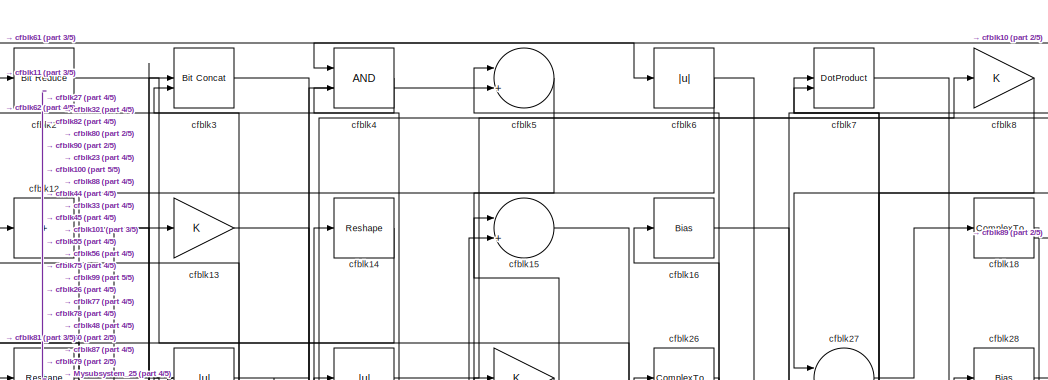
[diagram: root canvas - part 1/5, top center region]
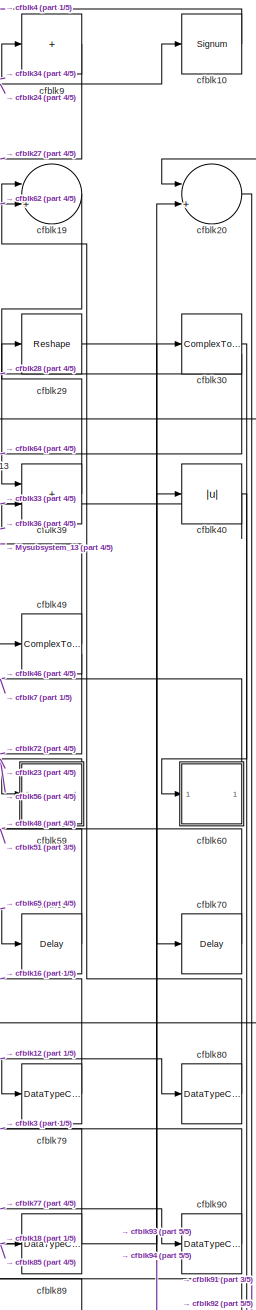
[diagram: root canvas - part 2/5, right side, full height]
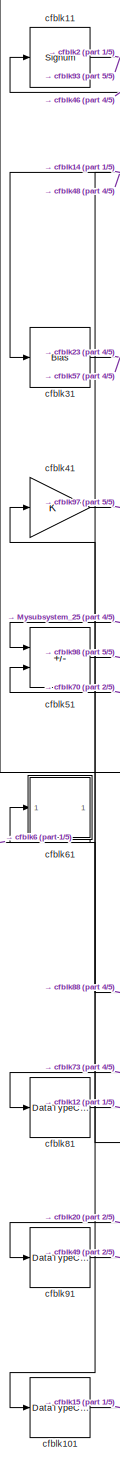
[diagram: root canvas - part 3/5, left side, full height]
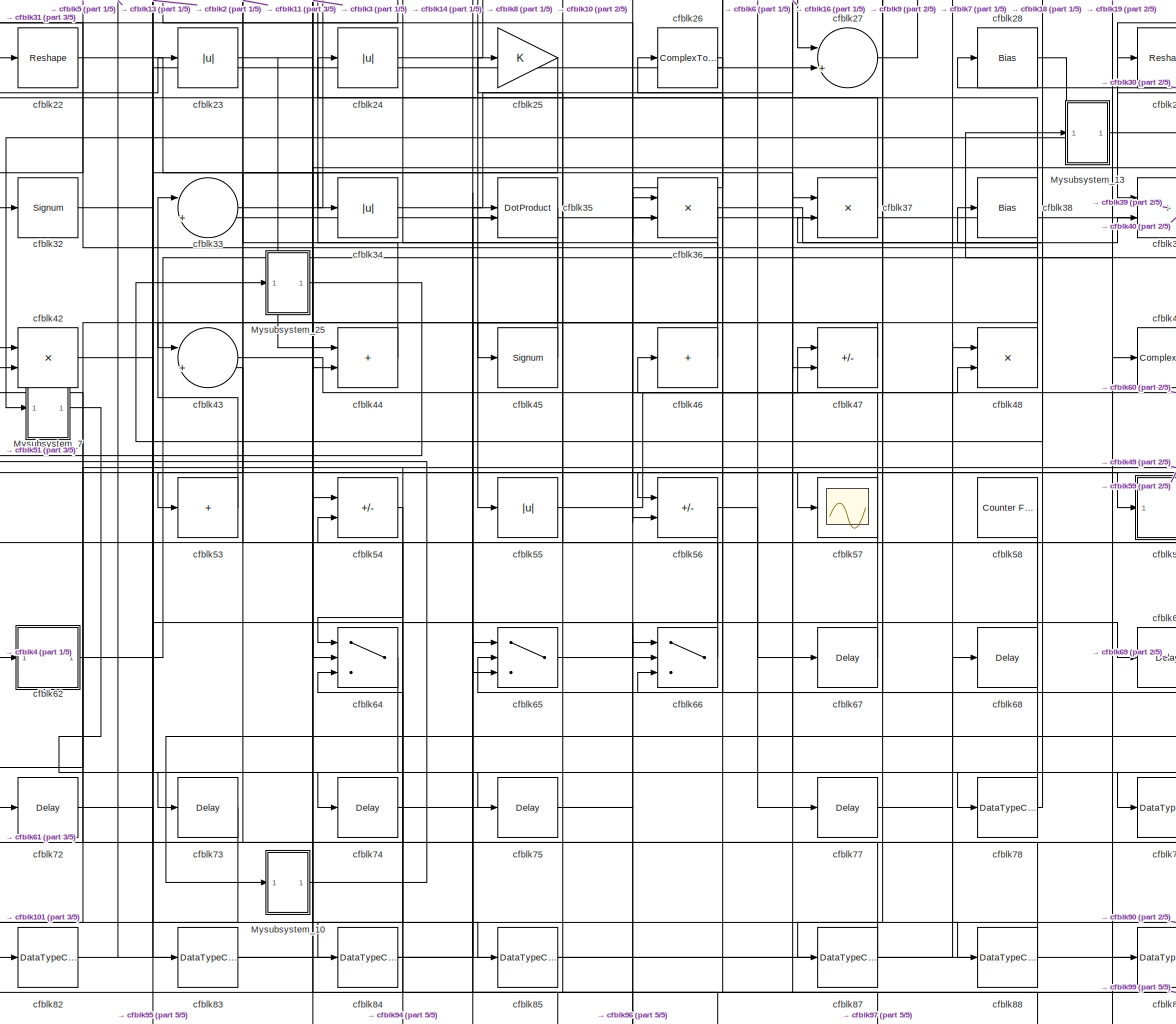
[diagram: root canvas - part 4/5, full width, middle band]
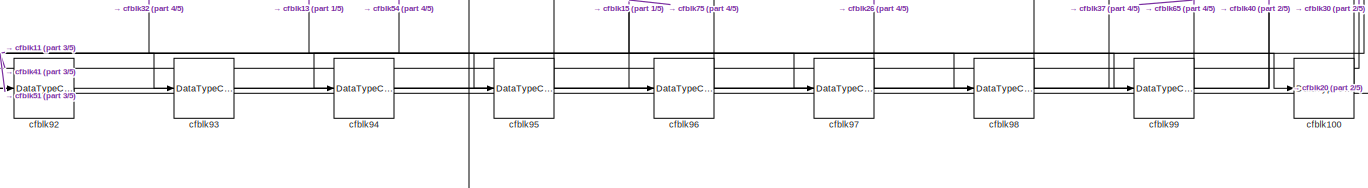
[diagram: root canvas - part 5/5, full width, bottom band]
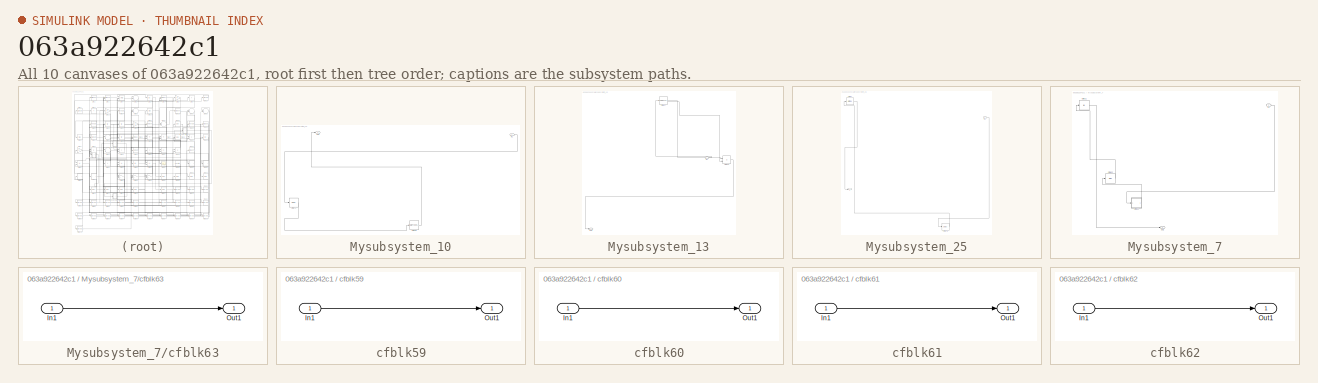
[diagram: thumbnail index - all 10 canvases of the model, root first then tree order]
MODEL slx_063a922642c1
KIND model
CONFIG AbsTol = auto
CONFIG EnableMultiTasking = off
CONFIG FixedStep = auto
CONFIG MaxStep = auto
CONFIG MinStep = auto
CONFIG RelTol = 1e-3
CONFIG SampleTimeConstraint = Unconstrained
CONFIG SolverName = VariableStepAuto
CONFIG StartTime = 0.0
CONFIG StopTime = 10.0
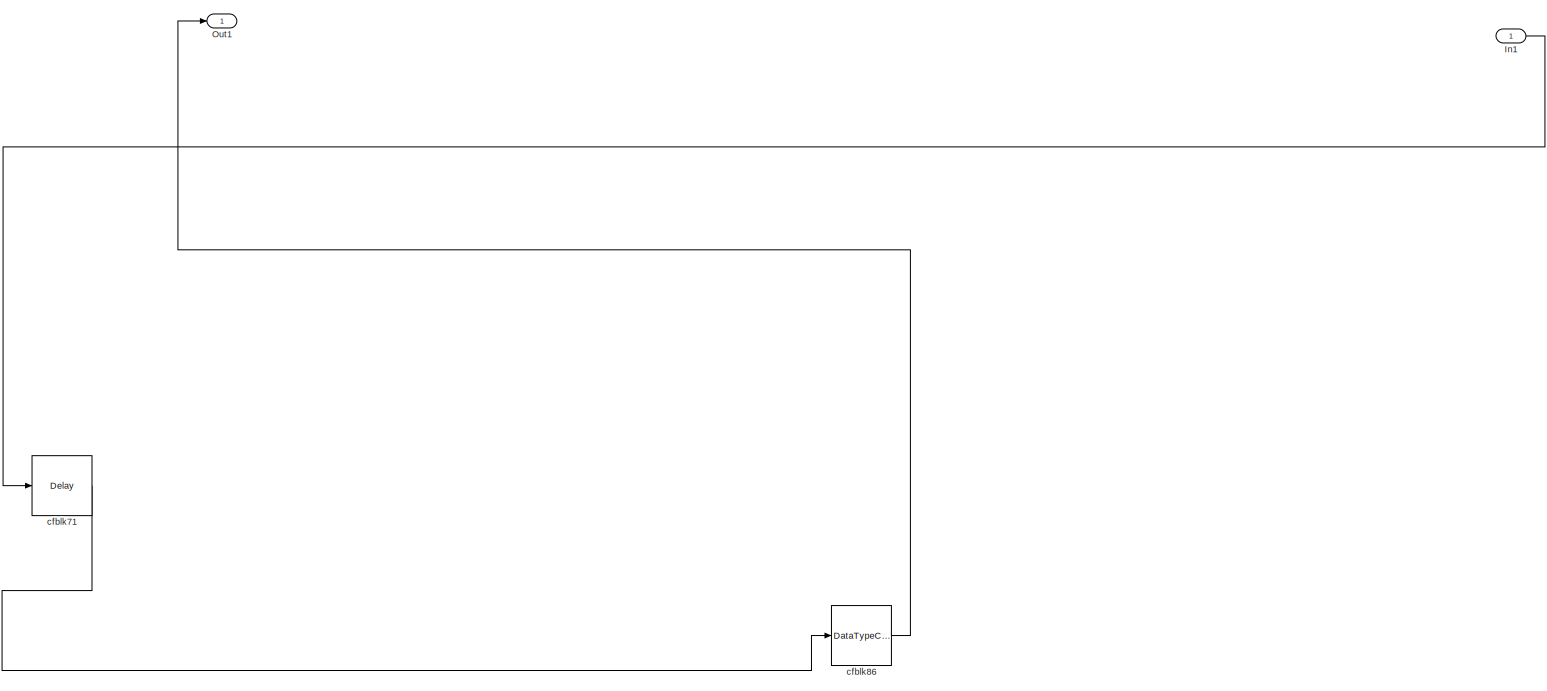
[diagram: Mysubsystem_10 - part 1/1, most of the canvas]
BLOCK [SubSystem] Mysubsystem_10
  RTWFcnName = Mysubsystem_10
  RTWFcnNameOpts = User specified
  RTWFileNameOpts = Use function name
  RTWSystemCode = Reusable function
  TreatAsAtomicUnit = on
BLOCK [Inport] Mysubsystem_10/In1
BLOCK [Outport] Mysubsystem_10/Out1
BLOCK [Delay] Mysubsystem_10/cfblk71
  InputPortMap = u0
  SampleTime = 1
BLOCK [DataTypeConversion] Mysubsystem_10/cfblk86
  OutDataTypeStr = uint8
  RndMeth = Floor
  SaturateOnIntegerOverflow = off
BLOCK [SubSystem] Mysubsystem_13
  RTWFcnName = Mysubsystem_13
  RTWFcnNameOpts = User specified
  RTWFileNameOpts = Use function name
  RTWSystemCode = Reusable function
  TreatAsAtomicUnit = on
BLOCK [Inport] Mysubsystem_13/In1
BLOCK [Outport] Mysubsystem_13/Out1
BLOCK [ComplexToRealImag] Mysubsystem_13/cfblk17
BLOCK [Product] Mysubsystem_13/cfblk50
  Inputs = */
  RndMeth = Zero
  SaturateOnIntegerOverflow = on
BLOCK [SubSystem] Mysubsystem_25
  RTWFcnName = Mysubsystem_25
  RTWFcnNameOpts = User specified
  RTWFileNameOpts = Use function name
  RTWSystemCode = Reusable function
  TreatAsAtomicUnit = on
BLOCK [Inport] Mysubsystem_25/In1
BLOCK [Reference] Mysubsystem_25/cfblk1  REF=hdlsllib/Logic and Bit
Operations/Bit Slice
  SourceBlock = hdlsllib/Logic and Bit\nOperations/Bit Slice
  SourceType = Bit Slice
BLOCK [Delay] Mysubsystem_25/cfblk76
  InputPortMap = u0
  SampleTime = 1
BLOCK [Outport] Mysubsystem_25/y
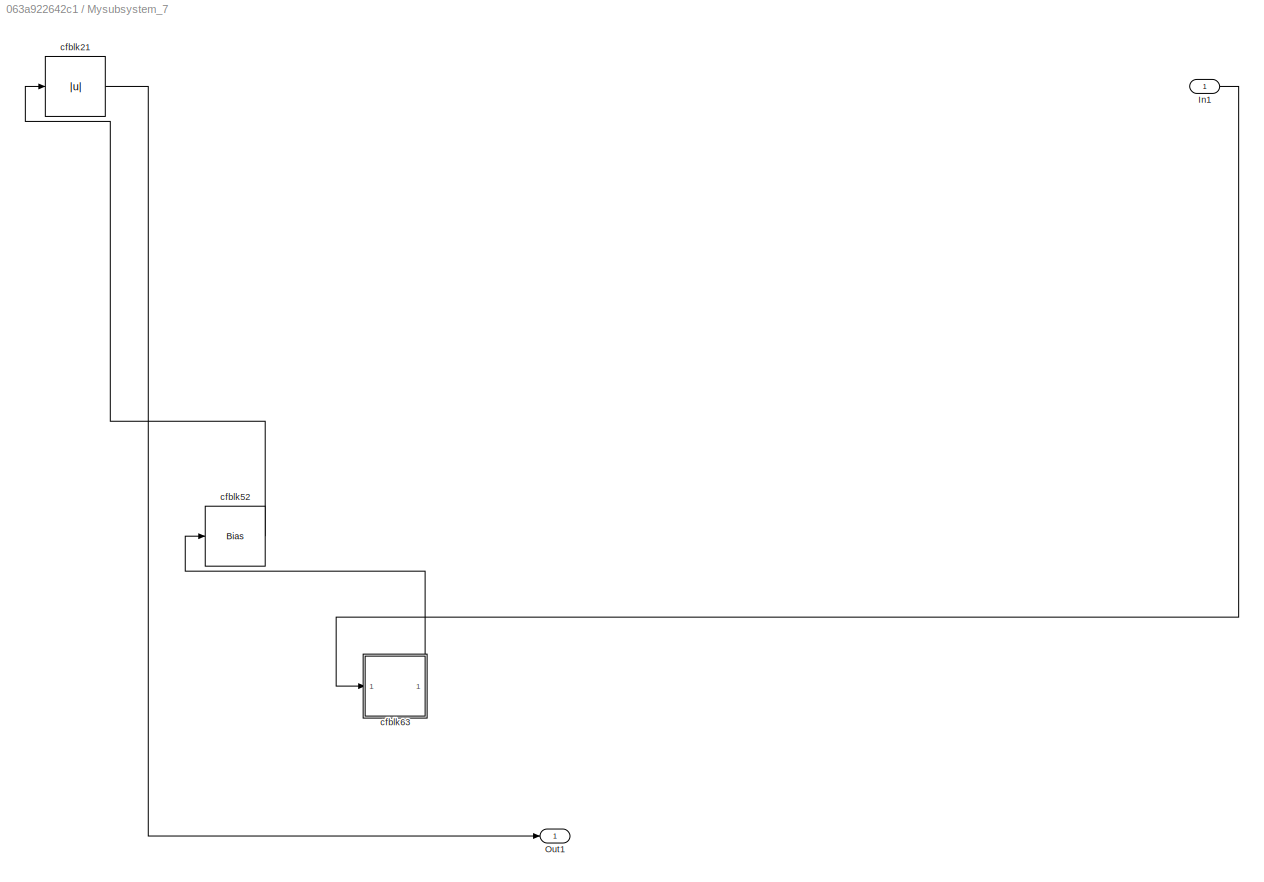
BLOCK [SubSystem] Mysubsystem_7
  RTWFcnName = Mysubsystem_7
  RTWFcnNameOpts = User specified
  RTWFileNameOpts = Use function name
  RTWSystemCode = Reusable function
  TreatAsAtomicUnit = on
BLOCK [Inport] Mysubsystem_7/In1
BLOCK [Outport] Mysubsystem_7/Out1
BLOCK [Abs] Mysubsystem_7/cfblk21
  SaturateOnIntegerOverflow = off
BLOCK [Bias] Mysubsystem_7/cfblk52
  Bias = 0.0
  SaturateOnIntegerOverflow = off
BLOCK [SubSystem] Mysubsystem_7/cfblk63
BLOCK [Inport] Mysubsystem_7/cfblk63/In1
BLOCK [Outport] Mysubsystem_7/cfblk63/Out1
BLOCK [Signum] cfblk10
BLOCK [DataTypeConversion] cfblk100
  OutDataTypeStr = uint8
  RndMeth = Floor
  SaturateOnIntegerOverflow = off
BLOCK [DataTypeConversion] cfblk101
  OutDataTypeStr = uint8
  RndMeth = Floor
  SaturateOnIntegerOverflow = off
BLOCK [Signum] cfblk11
BLOCK [Sum] cfblk12
  IconShape = rectangular
  Inputs = +
BLOCK [Gain] cfblk13
BLOCK [Reshape] cfblk14
BLOCK [Sum] cfblk15
  Inputs = |++
BLOCK [Bias] cfblk16
  Bias = 0.0
  SaturateOnIntegerOverflow = off
BLOCK [ComplexToRealImag] cfblk18
BLOCK [Sum] cfblk19
  Inputs = |++
BLOCK [Reference] cfblk2  REF=hdlsllib/Logic and Bit
Operations/Bit Reduce
  SourceBlock = hdlsllib/Logic and Bit\nOperations/Bit Reduce
  SourceType = Bit Reduce
BLOCK [Sum] cfblk20
  Inputs = |++
BLOCK [Reshape] cfblk22
BLOCK [Abs] cfblk23
  SaturateOnIntegerOverflow = off
BLOCK [Abs] cfblk24
  SaturateOnIntegerOverflow = off
BLOCK [Gain] cfblk25
BLOCK [ComplexToRealImag] cfblk26
BLOCK [Sum] cfblk27
  Inputs = |++
BLOCK [Bias] cfblk28
  Bias = 0.0
  SaturateOnIntegerOverflow = off
BLOCK [Reshape] cfblk29
BLOCK [Reference] cfblk3  REF=hdlsllib/Logic and Bit
Operations/Bit Concat
  SourceBlock = hdlsllib/Logic and Bit\nOperations/Bit Concat
  SourceType = Bit Concat
BLOCK [ComplexToRealImag] cfblk30
BLOCK [Bias] cfblk31
  Bias = 0.0
  SaturateOnIntegerOverflow = off
BLOCK [Signum] cfblk32
BLOCK [Sum] cfblk33
  Inputs = |++
BLOCK [Abs] cfblk34
  SaturateOnIntegerOverflow = off
BLOCK [DotProduct] cfblk35
  OutDataTypeStr = Inherit: Inherit via internal rule
BLOCK [Product] cfblk36
  Inputs = */
  RndMeth = Zero
  SaturateOnIntegerOverflow = on
BLOCK [Product] cfblk37
  Inputs = */
  RndMeth = Zero
  SaturateOnIntegerOverflow = on
BLOCK [Bias] cfblk38
  Bias = 0.0
  SaturateOnIntegerOverflow = off
BLOCK [Sum] cfblk39
  IconShape = rectangular
BLOCK [Logic] cfblk4
  AllPortsSameDT = off
  OutDataTypeStr = boolean
BLOCK [Abs] cfblk40
  SaturateOnIntegerOverflow = off
BLOCK [Gain] cfblk41
BLOCK [Product] cfblk42
  Inputs = */
  RndMeth = Zero
  SaturateOnIntegerOverflow = on
BLOCK [Sum] cfblk43
  Inputs = |++
BLOCK [Sum] cfblk44
  IconShape = rectangular
BLOCK [Signum] cfblk45
BLOCK [Sum] cfblk46
  IconShape = rectangular
  Inputs = +
BLOCK [Sum] cfblk47
  IconShape = rectangular
  Inputs = +-
BLOCK [Product] cfblk48
  Inputs = */
  RndMeth = Zero
  SaturateOnIntegerOverflow = on
BLOCK [ComplexToRealImag] cfblk49
BLOCK [Sum] cfblk5
  Inputs = |++
BLOCK [Sum] cfblk51
  IconShape = rectangular
  Inputs = +-
BLOCK [Sum] cfblk53
  IconShape = rectangular
  Inputs = +
BLOCK [Sum] cfblk54
  IconShape = rectangular
  Inputs = +-
BLOCK [Abs] cfblk55
  SaturateOnIntegerOverflow = off
BLOCK [Sum] cfblk56
  IconShape = rectangular
  Inputs = +-
BLOCK [Scope] cfblk57
  Floating = off
  NumInputPorts = 1
  ScopeSpecificationString = Simulink.scopes.TimeScopeBlockCfg('CurrentConfiguration', extmgr.ConfigurationSet(extmgr.Configuration('Core','General UI',true),extmgr.Configuration('Core','Source UI',true),extmgr.Configuration('Sources','WiredSimulink',true,'DataLoggingVariableName','ScopeData2','DataLoggingSaveFormat','Array','DataLoggingLimitDataPoints',true,'DataLoggingDecimation','1'),extmgr.Configuration('Visuals','Time Do...<+868ch>
BLOCK [Reference] cfblk58  REF=hdlsllib/Sources/Counter
Free-Running
  SourceBlock = hdlsllib/Sources/Counter\nFree-Running
  SourceType = Counter Free-Running
BLOCK [SubSystem] cfblk59
BLOCK [Inport] cfblk59/In1
BLOCK [Outport] cfblk59/Out1
BLOCK [Abs] cfblk6
  SaturateOnIntegerOverflow = off
BLOCK [SubSystem] cfblk60
BLOCK [Inport] cfblk60/In1
BLOCK [Outport] cfblk60/Out1
BLOCK [SubSystem] cfblk61
BLOCK [Inport] cfblk61/In1
BLOCK [Outport] cfblk61/Out1
BLOCK [SubSystem] cfblk62
BLOCK [Inport] cfblk62/In1
BLOCK [Outport] cfblk62/Out1
BLOCK [Switch] cfblk64
  InputSameDT = off
  SaturateOnIntegerOverflow = off
BLOCK [Switch] cfblk65
  InputSameDT = off
  SaturateOnIntegerOverflow = off
BLOCK [Switch] cfblk66
  InputSameDT = off
  SaturateOnIntegerOverflow = off
BLOCK [Delay] cfblk67
  InputPortMap = u0
  SampleTime = 1
BLOCK [Delay] cfblk68
  InputPortMap = u0
  SampleTime = 1
BLOCK [Delay] cfblk69
  InputPortMap = u0
  SampleTime = 1
BLOCK [DotProduct] cfblk7
  OutDataTypeStr = Inherit: Inherit via internal rule
BLOCK [Delay] cfblk70
  InputPortMap = u0
  SampleTime = 1
BLOCK [Delay] cfblk72
  InputPortMap = u0
  SampleTime = 1
BLOCK [Delay] cfblk73
  InputPortMap = u0
  SampleTime = 1
BLOCK [Delay] cfblk74
  InputPortMap = u0
  SampleTime = 1
BLOCK [Delay] cfblk75
  InputPortMap = u0
  SampleTime = 1
BLOCK [Delay] cfblk77
  InputPortMap = u0
  SampleTime = 1
BLOCK [DataTypeConversion] cfblk78
  RndMeth = Floor
  SaturateOnIntegerOverflow = off
BLOCK [DataTypeConversion] cfblk79
  OutDataTypeStr = uint8
  RndMeth = Floor
  SaturateOnIntegerOverflow = off
BLOCK [Gain] cfblk8
BLOCK [DataTypeConversion] cfblk80
  OutDataTypeStr = uint8
  RndMeth = Floor
  SaturateOnIntegerOverflow = off
BLOCK [DataTypeConversion] cfblk81
  OutDataTypeStr = uint8
  RndMeth = Floor
  SaturateOnIntegerOverflow = off
BLOCK [DataTypeConversion] cfblk82
  RndMeth = Floor
  SaturateOnIntegerOverflow = off
BLOCK [DataTypeConversion] cfblk83
  OutDataTypeStr = uint8
  RndMeth = Floor
  SaturateOnIntegerOverflow = off
BLOCK [DataTypeConversion] cfblk84
  OutDataTypeStr = uint8
  RndMeth = Floor
  SaturateOnIntegerOverflow = off
BLOCK [DataTypeConversion] cfblk85
  OutDataTypeStr = uint8
  RndMeth = Floor
  SaturateOnIntegerOverflow = off
BLOCK [DataTypeConversion] cfblk87
  OutDataTypeStr = uint8
  RndMeth = Floor
  SaturateOnIntegerOverflow = off
BLOCK [DataTypeConversion] cfblk88
  RndMeth = Floor
  SaturateOnIntegerOverflow = off
BLOCK [DataTypeConversion] cfblk89
  OutDataTypeStr = uint8
  RndMeth = Floor
  SaturateOnIntegerOverflow = off
BLOCK [Sum] cfblk9
  IconShape = rectangular
  Inputs = +
BLOCK [DataTypeConversion] cfblk90
  OutDataTypeStr = uint8
  RndMeth = Floor
  SaturateOnIntegerOverflow = off
BLOCK [DataTypeConversion] cfblk91
  OutDataTypeStr = uint8
  RndMeth = Floor
  SaturateOnIntegerOverflow = off
BLOCK [DataTypeConversion] cfblk92
  OutDataTypeStr = uint8
  RndMeth = Floor
  SaturateOnIntegerOverflow = off
BLOCK [DataTypeConversion] cfblk93
  OutDataTypeStr = uint8
  RndMeth = Floor
  SaturateOnIntegerOverflow = off
BLOCK [DataTypeConversion] cfblk94
  OutDataTypeStr = uint8
  RndMeth = Floor
  SaturateOnIntegerOverflow = off
BLOCK [DataTypeConversion] cfblk95
  OutDataTypeStr = uint8
  RndMeth = Floor
  SaturateOnIntegerOverflow = off
BLOCK [DataTypeConversion] cfblk96
  OutDataTypeStr = uint8
  RndMeth = Floor
  SaturateOnIntegerOverflow = off
BLOCK [DataTypeConversion] cfblk97
  OutDataTypeStr = uint8
  RndMeth = Floor
  SaturateOnIntegerOverflow = off
BLOCK [DataTypeConversion] cfblk98
  OutDataTypeStr = uint8
  RndMeth = Floor
  SaturateOnIntegerOverflow = off
BLOCK [DataTypeConversion] cfblk99
  RndMeth = Floor
  SaturateOnIntegerOverflow = off
LINE Mysubsystem_10/In1:1 -> Mysubsystem_10/cfblk71:1
LINE Mysubsystem_10/cfblk71:1 -> Mysubsystem_10/cfblk86:1
LINE Mysubsystem_10/cfblk86:1 -> Mysubsystem_10/Out1:1
LINE Mysubsystem_10:1 -> cfblk42:1
LINE Mysubsystem_13/In1:1 -> Mysubsystem_13/cfblk17:1
LINE Mysubsystem_13/cfblk17:1 -> Mysubsystem_13/cfblk50:1
LINE Mysubsystem_13/cfblk17:2 -> Mysubsystem_13/cfblk50:2
LINE Mysubsystem_13/cfblk50:1 -> Mysubsystem_13/Out1:1
LINE Mysubsystem_13:1 -> Mysubsystem_10:1
LINE Mysubsystem_25/In1:1 -> Mysubsystem_25/cfblk76:1
LINE Mysubsystem_25/cfblk1:1 -> Mysubsystem_25/y:1
LINE Mysubsystem_25/cfblk76:1 -> Mysubsystem_25/cfblk1:1
LINE Mysubsystem_25:1 -> cfblk51:1
LINE Mysubsystem_7/In1:1 -> Mysubsystem_7/cfblk63:1
LINE Mysubsystem_7/cfblk21:1 -> Mysubsystem_7/Out1:1
LINE Mysubsystem_7/cfblk52:1 -> Mysubsystem_7/cfblk21:1
LINE Mysubsystem_7/cfblk63/In1:1 -> Mysubsystem_7/cfblk63/Out1:1
LINE Mysubsystem_7/cfblk63:1 -> Mysubsystem_7/cfblk52:1
LINE Mysubsystem_7:1 -> cfblk74:1
LINE cfblk100:1 -> cfblk15:1
LINE cfblk101:1 -> cfblk15:2
LINE cfblk10:1 -> cfblk4:1
NET cfblk11:1 -> cfblk2:1, cfblk93:1
LINE cfblk12:1 -> cfblk80:1
LINE cfblk13:1 -> cfblk100:1
LINE cfblk14:1 -> cfblk81:1
LINE cfblk15:1 -> cfblk99:1
LINE cfblk16:1 -> cfblk78:1
LINE cfblk18:1 -> Mysubsystem_25:1
LINE cfblk18:2 -> cfblk89:1
LINE cfblk19:1 -> cfblk39:1
LINE cfblk20:1 -> cfblk91:1
LINE cfblk22:1 -> cfblk47:2
NET cfblk23:1 -> cfblk44:1, cfblk59:1, cfblk5:2
LINE cfblk24:1 -> cfblk10:1
LINE cfblk25:1 -> cfblk53:1
LINE cfblk26:1 -> cfblk36:2
LINE cfblk26:2 -> cfblk5:1
LINE cfblk27:1 -> cfblk18:1
LINE cfblk28:1 -> Mysubsystem_7:1
LINE cfblk29:1 -> cfblk70:1
NET cfblk2:1 -> cfblk56:2, cfblk75:1
LINE cfblk30:1 -> cfblk92:1
NET cfblk30:2 -> cfblk28:1, cfblk64:2
NET cfblk31:1 -> cfblk23:1, cfblk57:1
NET cfblk32:1 -> cfblk27:2, cfblk34:1, cfblk95:1
LINE cfblk33:1 -> cfblk8:1
LINE cfblk34:1 -> cfblk9:1
LINE cfblk35:1 -> cfblk82:1
NET cfblk36:1 -> cfblk39:2, cfblk43:1, cfblk44:2
LINE cfblk37:1 -> cfblk24:1
NET cfblk38:1 -> cfblk22:1, cfblk65:3
LINE cfblk39:1 -> cfblk29:1
LINE cfblk3:1 -> cfblk88:1
NET cfblk40:1 -> cfblk33:2, cfblk60:1
LINE cfblk41:1 -> cfblk97:1
LINE cfblk42:1 -> cfblk85:1
LINE cfblk43:1 -> cfblk48:2
LINE cfblk44:1 -> cfblk14:1
LINE cfblk45:1 -> cfblk4:2
LINE cfblk46:1 -> cfblk11:1
LINE cfblk47:1 -> cfblk45:1
NET cfblk48:1 -> cfblk31:1, cfblk7:2
LINE cfblk49:1 -> Mysubsystem_13:1
NET cfblk49:2 -> cfblk64:1, cfblk72:1
LINE cfblk4:1 -> cfblk62:1
LINE cfblk51:1 -> cfblk98:1
LINE cfblk53:1 -> cfblk33:1
LINE cfblk54:1 -> cfblk94:1
LINE cfblk55:1 -> cfblk47:1
NET cfblk56:1 -> cfblk67:1, cfblk84:1
LINE cfblk58:1 -> cfblk65:2
LINE cfblk59/In1:1 -> cfblk59/Out1:1
LINE cfblk59:1 -> cfblk56:1
LINE cfblk5:1 -> cfblk32:1
LINE cfblk60/In1:1 -> cfblk60/Out1:1
NET cfblk60:1 -> cfblk46:1, cfblk7:1
LINE cfblk61/In1:1 -> cfblk61/Out1:1
LINE cfblk61:1 -> cfblk6:1
LINE cfblk62/In1:1 -> cfblk62/Out1:1
NET cfblk62:1 -> cfblk19:2, cfblk66:2
LINE cfblk64:1 -> cfblk73:1
LINE cfblk65:1 -> cfblk69:1
LINE cfblk66:1 -> cfblk25:1
LINE cfblk67:1 -> cfblk36:1
LINE cfblk68:1 -> cfblk43:2
LINE cfblk69:1 -> cfblk48:1
NET cfblk6:1 -> cfblk55:1, cfblk77:1
LINE cfblk70:1 -> cfblk51:2
LINE cfblk72:1 -> cfblk83:1
LINE cfblk73:1 -> cfblk101:1
LINE cfblk74:1 -> cfblk66:1
LINE cfblk75:1 -> cfblk96:1
LINE cfblk77:1 -> cfblk90:1
NET cfblk78:1 -> cfblk37:2, cfblk38:1, cfblk66:3
LINE cfblk79:1 -> cfblk16:1
LINE cfblk7:1 -> cfblk79:1
LINE cfblk80:1 -> cfblk19:1
LINE cfblk81:1 -> cfblk12:1
NET cfblk82:1 -> cfblk13:1, cfblk68:1
LINE cfblk83:1 -> cfblk35:1
LINE cfblk84:1 -> cfblk35:2
LINE cfblk85:1 -> cfblk30:1
LINE cfblk87:1 -> cfblk42:2
NET cfblk88:1 -> cfblk61:1, cfblk64:3
LINE cfblk89:1 -> cfblk3:1
LINE cfblk8:1 -> cfblk87:1
LINE cfblk90:1 -> cfblk3:2
LINE cfblk91:1 -> cfblk49:1
LINE cfblk92:1 -> cfblk20:1
LINE cfblk93:1 -> cfblk20:2
LINE cfblk94:1 -> cfblk40:1
LINE cfblk95:1 -> cfblk54:1
LINE cfblk96:1 -> cfblk54:2
LINE cfblk97:1 -> cfblk26:1
LINE cfblk98:1 -> cfblk41:1
NET cfblk99:1 -> cfblk37:1, cfblk65:1
LINE cfblk9:1 -> cfblk27:1
note: NET lines group one-source signal fan-out (src -> all destinations, sorted); 1:1 wires keep LINE
